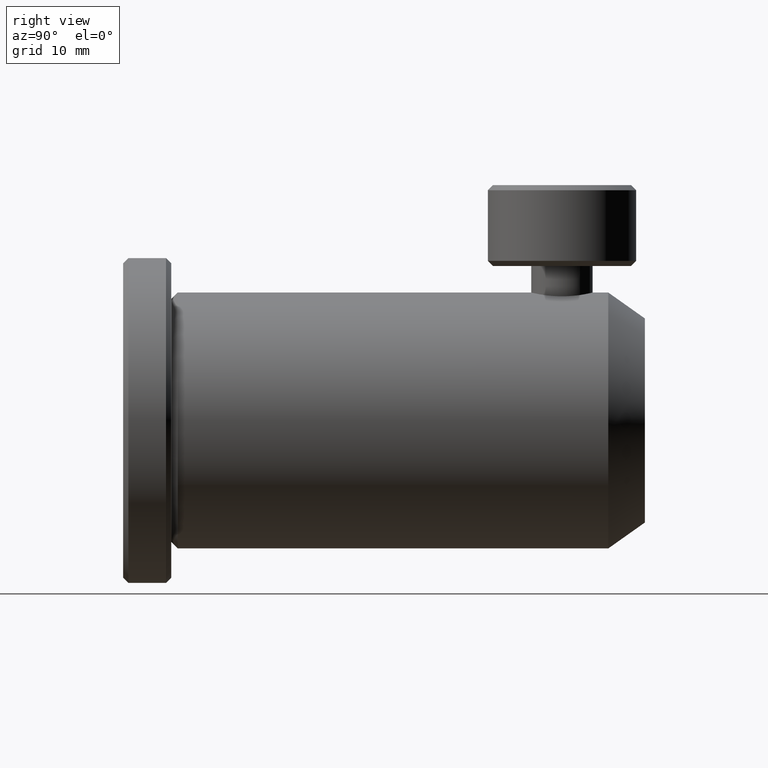
[diagram: clean part render]
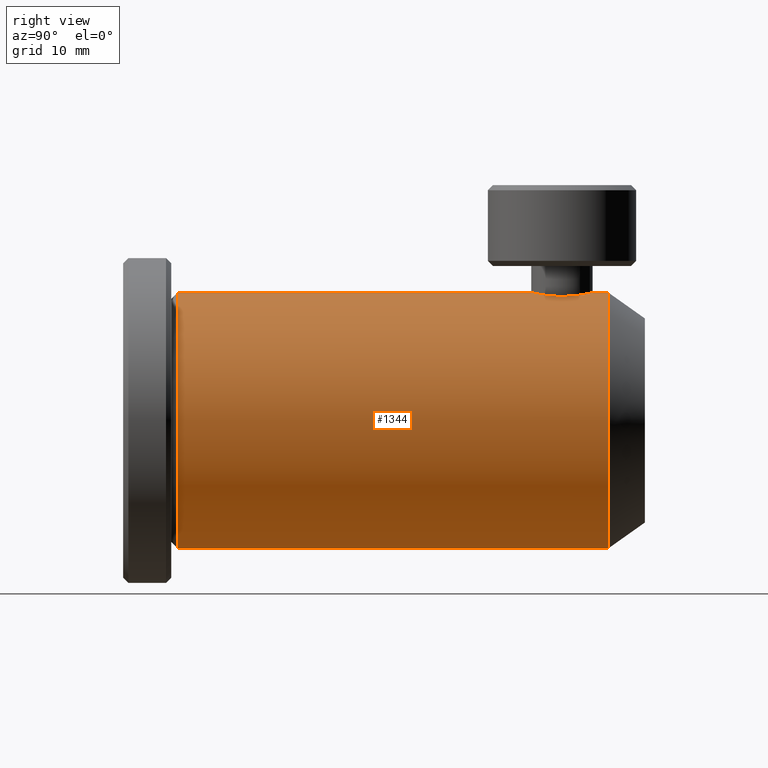
[diagram: same view with one face highlighted and labeled with its STEP entity id]
A machine part, right view. The second image highlights one B-rep face of the part: STEP entity #1344.
In plain terms, the highlighted cylindrical surface (partial cylindrical patch) has radius 12.5066 mm, axis along (-0, 1, -0).
Its self-contained STEP definition (entity closure, byte-faithful):
#8 = CARTESIAN_POINT ( 'NONE',  ( -16.77690416192938400, -14.21383156452665000, 24.35262460249726500 ) ) ;
#15 = ORIENTED_EDGE ( 'NONE', *, *, #3229, .F. ) ;
#24 = CARTESIAN_POINT ( 'NONE',  ( -14.15744916403990100, 24.86569708267422000, 24.07621427805917200 ) ) ;
#44 = EDGE_CURVE ( 'NONE', #2269, #2413, #2964, .T. ) ;
#90 = LINE ( 'NONE', #320, #1636 ) ;
#107 = CARTESIAN_POINT ( 'NONE',  ( -16.77690416192938400, 26.35116843547333700, 24.35262460249726900 ) ) ;
#256 = CARTESIAN_POINT ( 'NONE',  ( -13.77690416192938500, 23.35116843547333700, 23.98748503881588000 ) ) ;
#277 = CYLINDRICAL_SURFACE ( 'NONE', #2333, 12.50662460249726300 ) ;
#286 = CARTESIAN_POINT ( 'NONE',  ( -15.44624908779444500, 26.04705402353431500, 24.28296478403334600 ) ) ;
#320 = CARTESIAN_POINT ( 'NONE',  ( -16.77690416192938400, 10.85402768764679000, 24.35262460249726500 ) ) ;
#387 = EDGE_CURVE ( 'NONE', #2269, #2544, #90, .T. ) ;
#454 = FACE_OUTER_BOUND ( 'NONE', #2613, .T. ) ;
#457 = EDGE_CURVE ( 'NONE', #2413, #3182, #1736, .T. ) ;
#519 = DIRECTION ( 'NONE',  ( 0.0000000000000000000, 0.0000000000000000000, 1.000000000000000000 ) ) ;
#550 = AXIS2_PLACEMENT_3D ( 'NONE', #1099, #3013, #519 ) ;
#562 = CARTESIAN_POINT ( 'NONE',  ( -15.27051895870360500, 25.95287502741851400, 24.26265152329844800 ) ) ;
#577 = CARTESIAN_POINT ( 'NONE',  ( -16.38162019664869700, 26.33152385753744400, 24.34787061845349500 ) ) ;
#684 = CARTESIAN_POINT ( 'NONE',  ( -15.99772124523237900, 20.44749575104831900, 24.32981289233569900 ) ) ;
#708 = CARTESIAN_POINT ( 'NONE',  ( -13.77690416192938500, 23.35116843547333700, 23.98748503881588000 ) ) ;
#815 = VERTEX_POINT ( 'NONE', #107 ) ;
#856 = ORIENTED_EDGE ( 'NONE', *, *, #1519, .F. ) ;
#877 = CARTESIAN_POINT ( 'NONE',  ( -16.77690416192938400, -14.21383156452665000, -0.6606246024972641800 ) ) ;
#940 = LINE ( 'NONE', #2741, #2212 ) ;
#945 = CARTESIAN_POINT ( 'NONE',  ( -13.77690416192938500, 23.15463347015591800, 23.98748503881588300 ) ) ;
#947 = CARTESIAN_POINT ( 'NONE',  ( -16.77690416192938400, 10.85402768764679000, -0.6606246024972641800 ) ) ;
#982 = CARTESIAN_POINT ( 'NONE',  ( -14.51673513396067400, 21.36883407828872100, 24.14749770774939500 ) ) ;
#993 = CARTESIAN_POINT ( 'NONE',  ( -15.44362970670083300, 20.65653786957186400, 24.28269077793341800 ) ) ;
#1045 = CARTESIAN_POINT ( 'NONE',  ( -16.77690416192938400, 20.35116843547333700, 24.35262460249726500 ) ) ;
#1099 = CARTESIAN_POINT ( 'NONE',  ( -16.77690416192938400, 27.87733255234845600, 11.84600000000000000 ) ) ;
#1107 = CARTESIAN_POINT ( 'NONE',  ( -14.79550513255597500, 25.61229933147638200, 24.19547902575553200 ) ) ;
#1253 = B_SPLINE_CURVE_WITH_KNOTS ( 'NONE', 3,
 ( #3519, #2398, #2207, #1669, #1927, #24, #2170, #1107, #1938, #562, #286, #1398, #3022, #577, #2198, #1385 ),
 .UNSPECIFIED., .F., .F.,
 ( 4, 2, 2, 2, 2, 2, 2, 4 ),
 ( 0.004708133516923690200, 0.005296341045966305000, 0.005884548575008919700, 0.007060963633094139600, 0.007649171162136756000, 0.008237378691179372500, 0.008825586220221993300, 0.009413793749264614100 ),
 .UNSPECIFIED. ) ;
#1271 = ORIENTED_EDGE ( 'NONE', *, *, #1728, .F. ) ;
#1344 = ADVANCED_FACE ( 'NONE', ( #454 ), #277, .T. ) ;
#1385 = CARTESIAN_POINT ( 'NONE',  ( -16.77690416192938400, 26.35116843547333700, 24.35262460249726900 ) ) ;
#1398 = CARTESIAN_POINT ( 'NONE',  ( -15.80845106065386200, 26.19731330544494700, 24.31639833189927900 ) ) ;
#1448 = CARTESIAN_POINT ( 'NONE',  ( -16.77690416192938400, 20.35116843547333700, 24.35262460249726500 ) ) ;
#1519 = EDGE_CURVE ( 'NONE', #815, #2026, #940, .T. ) ;
#1526 = VERTEX_POINT ( 'NONE', #256 ) ;
#1565 = ORIENTED_EDGE ( 'NONE', *, *, #44, .T. ) ;
#1636 = VECTOR ( 'NONE', #3355, 1000.000000000000000 ) ;
#1669 = CARTESIAN_POINT ( 'NONE',  ( -13.87375671712970000, 24.13239678693771500, 24.01107156492711800 ) ) ;
#1728 = EDGE_CURVE ( 'NONE', #2544, #1526, #3157, .T. ) ;
#1736 = LINE ( 'NONE', #947, #2411 ) ;
#1780 = CARTESIAN_POINT ( 'NONE',  ( -14.17354580636024700, 21.84736573050339800, 24.07918040308953800 ) ) ;
#1883 = DIRECTION ( 'NONE',  ( -0.0000000000000000000, 1.000000000000000000, -0.0000000000000000000 ) ) ;
#1895 = DIRECTION ( 'NONE',  ( -0.0000000000000000000, 1.000000000000000000, -0.0000000000000000000 ) ) ;
#1927 = CARTESIAN_POINT ( 'NONE',  ( -13.93071742062228900, 24.31970155875707800, 24.02470628136472900 ) ) ;
#1938 = CARTESIAN_POINT ( 'NONE',  ( -14.94619837656832900, 25.73582562226437900, 24.21899267594436000 ) ) ;
#1999 = CARTESIAN_POINT ( 'NONE',  ( -16.57785330784489000, 20.35116843547334000, 24.35262460249726100 ) ) ;
#2015 = CARTESIAN_POINT ( 'NONE',  ( -16.77690416192938400, 27.87733255234845600, 24.35262460249726500 ) ) ;
#2026 = VERTEX_POINT ( 'NONE', #2015 ) ;
#2071 = CARTESIAN_POINT ( 'NONE',  ( -15.27154643878212400, 20.74880891731018900, 24.26278492902625300 ) ) ;
#2170 = CARTESIAN_POINT ( 'NONE',  ( -14.37826915767327800, 25.19539463803172200, 24.12369809686238000 ) ) ;
#2198 = CARTESIAN_POINT ( 'NONE',  ( -16.58074192017418700, 26.35116843547333000, 24.35262460249725800 ) ) ;
#2207 = CARTESIAN_POINT ( 'NONE',  ( -13.79667672050338800, 23.74718260283375000, 23.99241822363352800 ) ) ;
#2212 = VECTOR ( 'NONE', #1883, 1000.000000000000000 ) ;
#2269 = VERTEX_POINT ( 'NONE', #8 ) ;
#2317 = CARTESIAN_POINT ( 'NONE',  ( -14.08088682120798100, 22.02088688490933800, 24.05882295830631500 ) ) ;
#2333 = AXIS2_PLACEMENT_3D ( 'NONE', #2405, #1895, #2443 ) ;
#2341 = CARTESIAN_POINT ( 'NONE',  ( -16.38227192160633900, 20.37078146884534400, 24.34787888852779900 ) ) ;
#2352 = ORIENTED_EDGE ( 'NONE', *, *, #387, .F. ) ;
#2398 = CARTESIAN_POINT ( 'NONE',  ( -13.77690416192938500, 23.54760015671368500, 23.98748503881588700 ) ) ;
#2405 = CARTESIAN_POINT ( 'NONE',  ( -16.77690416192938400, 10.85402768764679000, 11.84600000000000000 ) ) ;
#2411 = VECTOR ( 'NONE', #3124, 1000.000000000000000 ) ;
#2413 = VERTEX_POINT ( 'NONE', #877 ) ;
#2443 = DIRECTION ( 'NONE',  ( 0.0000000000000000000, 0.0000000000000000000, 1.000000000000000000 ) ) ;
#2516 = ORIENTED_EDGE ( 'NONE', *, *, #2628, .F. ) ;
#2534 = CARTESIAN_POINT ( 'NONE',  ( -16.77690416192938400, -14.21383156452665000, 11.84600000000000000 ) ) ;
#2544 = VERTEX_POINT ( 'NONE', #1045 ) ;
#2573 = CARTESIAN_POINT ( 'NONE',  ( -15.80671340999984900, 20.50557806359514500, 24.31626977189224400 ) ) ;
#2613 = EDGE_LOOP ( 'NONE', ( #1565, #2703, #15, #856, #2516, #1271, #2352 ) ) ;
#2628 = EDGE_CURVE ( 'NONE', #1526, #815, #1253, .T. ) ;
#2703 = ORIENTED_EDGE ( 'NONE', *, *, #457, .T. ) ;
#2741 = CARTESIAN_POINT ( 'NONE',  ( -16.77690416192938400, 10.85402768764679000, 24.35262460249726500 ) ) ;
#2836 = DIRECTION ( 'NONE',  ( -0.0000000000000000000, 1.000000000000000000, -0.0000000000000000000 ) ) ;
#2866 = AXIS2_PLACEMENT_3D ( 'NONE', #2534, #2836, #3399 ) ;
#2869 = CARTESIAN_POINT ( 'NONE',  ( -14.39282510627846700, 21.51948495861572400, 24.12379884826479400 ) ) ;
#2912 = CARTESIAN_POINT ( 'NONE',  ( -13.87320317650571200, 22.57168489573371400, 24.01093960867708800 ) ) ;
#2964 = CIRCLE ( 'NONE', #2866, 12.50662460249726300 ) ;
#3013 = DIRECTION ( 'NONE',  ( -0.0000000000000000000, 1.000000000000000000, -0.0000000000000000000 ) ) ;
#3022 = CARTESIAN_POINT ( 'NONE',  ( -15.99547646154485600, 26.25429409656806400, 24.32968491763671500 ) ) ;
#3124 = DIRECTION ( 'NONE',  ( -0.0000000000000000000, 1.000000000000000000, -0.0000000000000000000 ) ) ;
#3157 = B_SPLINE_CURVE_WITH_KNOTS ( 'NONE', 3,
 ( #1448, #1999, #2341, #684, #2573, #993, #2071, #3475, #3439, #982, #2869, #1780, #2317, #3179, #2912, #3169, #945, #708 ),
 .UNSPECIFIED., .F., .F.,
 ( 4, 2, 2, 2, 2, 2, 2, 2, 4 ),
 ( 0.0000000000000000000, 0.0005885166896154612800, 0.001177033379230922600, 0.001765550068846383700, 0.002354066758461845100, 0.002942583448077306500, 0.003531100137692767500, 0.004119616827308229300, 0.004708133516923690200 ),
 .UNSPECIFIED. ) ;
#3169 = CARTESIAN_POINT ( 'NONE',  ( -13.79603029263558200, 22.95942237379968300, 23.99225975643829000 ) ) ;
#3179 = CARTESIAN_POINT ( 'NONE',  ( -13.93114311660579200, 22.38173428187638700, 24.02480118013769300 ) ) ;
#3182 = VERTEX_POINT ( 'NONE', #3334 ) ;
#3229 = EDGE_CURVE ( 'NONE', #2026, #3182, #3286, .T. ) ;
#3286 = CIRCLE ( 'NONE', #550, 12.50662460249726300 ) ;
#3334 = CARTESIAN_POINT ( 'NONE',  ( -16.77690416192938400, 27.87733255234845600, -0.6606246024972641800 ) ) ;
#3355 = DIRECTION ( 'NONE',  ( -0.0000000000000000000, 1.000000000000000000, -0.0000000000000000000 ) ) ;
#3399 = DIRECTION ( 'NONE',  ( 0.0000000000000000000, 0.0000000000000000000, 1.000000000000000000 ) ) ;
#3439 = CARTESIAN_POINT ( 'NONE',  ( -14.79232840064647500, 21.09296725170074500, 24.19495416367236700 ) ) ;
#3475 = CARTESIAN_POINT ( 'NONE',  ( -14.94590430181606200, 20.96667342631973000, 24.21895798750637100 ) ) ;
#3519 = CARTESIAN_POINT ( 'NONE',  ( -13.77690416192938500, 23.35116843547333700, 23.98748503881588000 ) ) ;